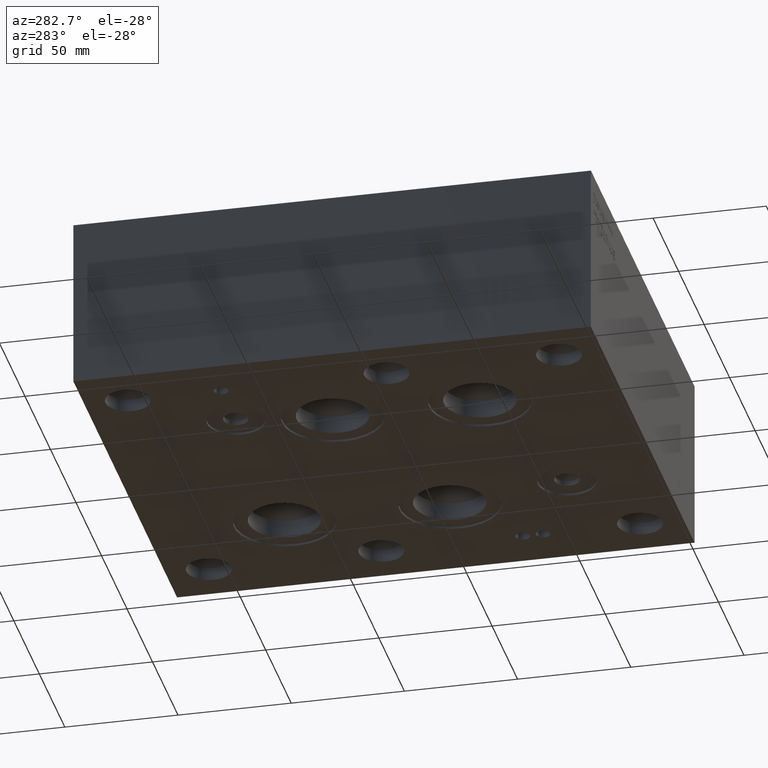
[diagram: clean part render]
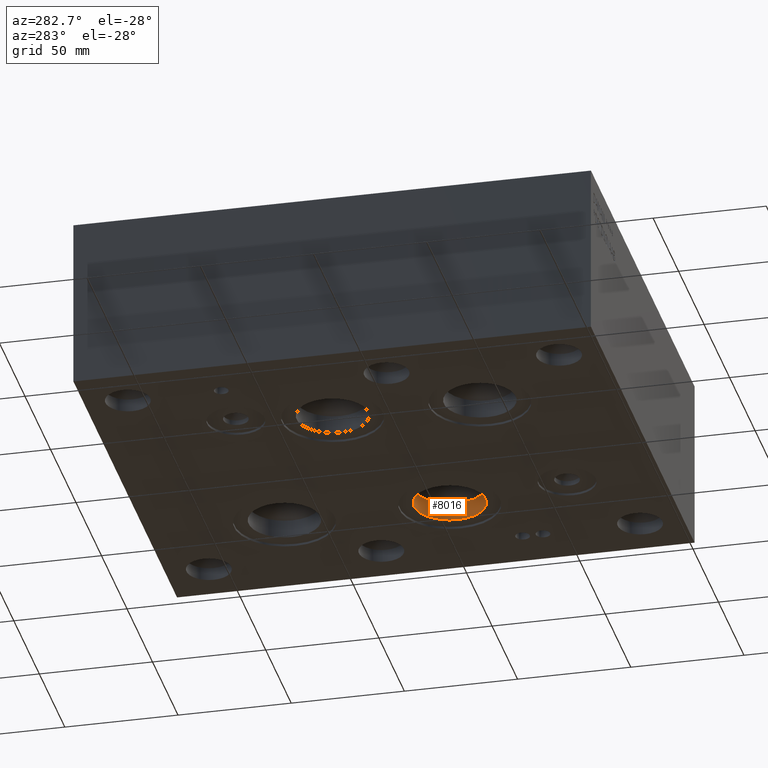
[diagram: same view with one face highlighted and labeled with its STEP entity id]
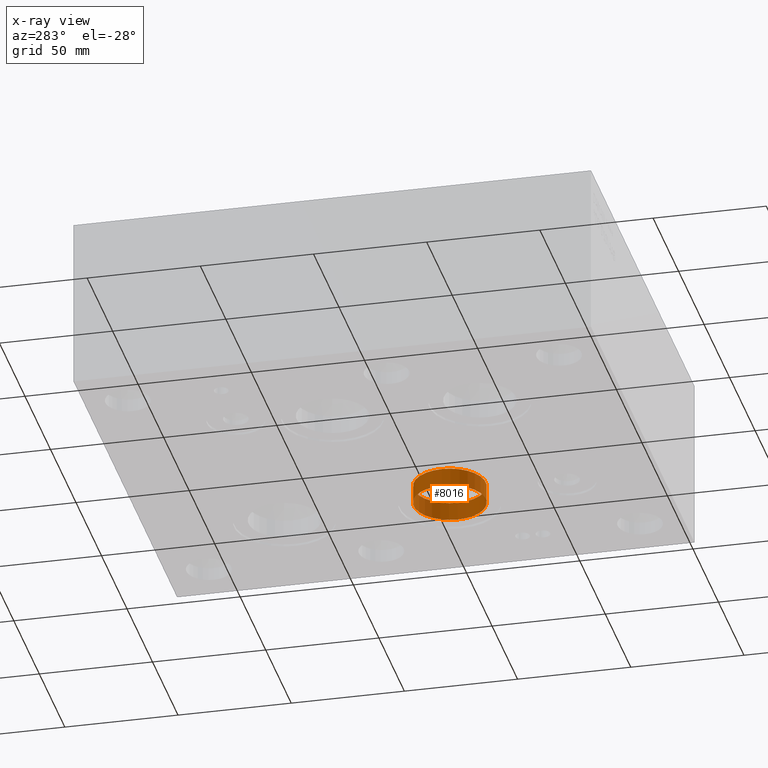
[diagram: x-ray of the same camera — body ghosted, the highlighted face saturated]
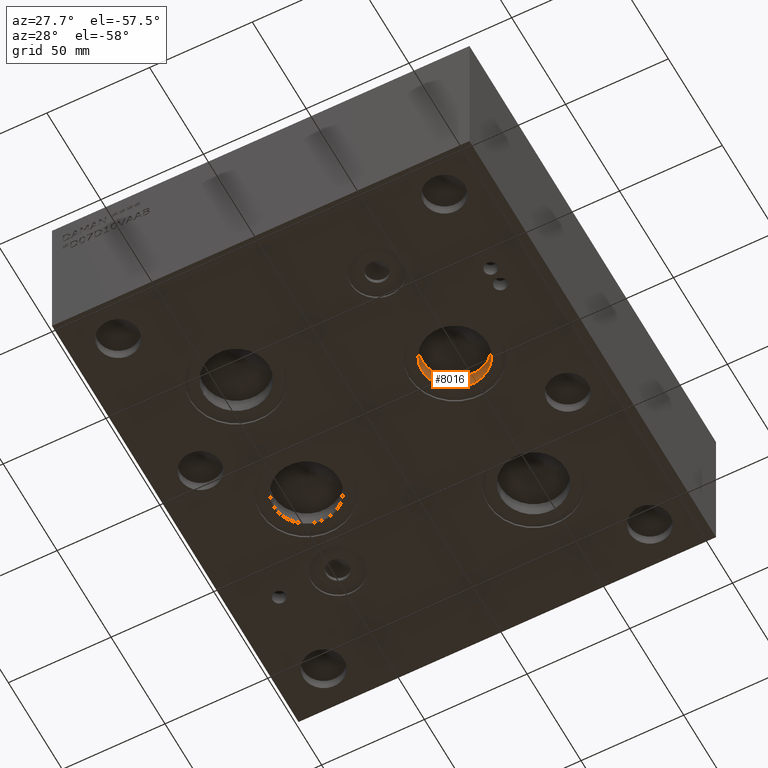
[diagram: same view with one face highlighted and labeled with its STEP entity id]
A machine part, auxiliary view. The second image highlights one B-rep face of the part: STEP entity #8016.
The next image is the same camera in x-ray: the body ghosted, the highlighted face saturated — about 0% of this face is hidden behind the body in this view.
A second angle (auxiliary view) of the same face is appended — the face is thin or edge-on in the first view.
In plain terms, the highlighted cylindrical surface (bore or boss wall) has radius 15.875 mm, axis along (0, 0, -1).
Its self-contained STEP definition (entity closure, byte-faithful):
#19=CYLINDRICAL_SURFACE('',#8399,15.875);
#84=CIRCLE('',#8397,15.875);
#85=CIRCLE('',#8398,15.875);
#86=CIRCLE('',#8400,15.875);
#880=FACE_OUTER_BOUND('',#1325,.T.);
#1325=EDGE_LOOP('',(#6613,#6614,#6615,#6616,#6617));
#2177=LINE('',#13101,#2964);
#2964=VECTOR('',#9917,15.875);
#3617=VERTEX_POINT('',#13092);
#3618=VERTEX_POINT('',#13093);
#3620=VERTEX_POINT('',#13099);
#4672=EDGE_CURVE('',#3617,#3618,#84,.T.);
#4674=EDGE_CURVE('',#3618,#3617,#85,.T.);
#4675=EDGE_CURVE('',#3620,#3620,#86,.T.);
#4676=EDGE_CURVE('',#3620,#3618,#2177,.T.);
#6613=ORIENTED_EDGE('',*,*,#4675,.F.);
#6614=ORIENTED_EDGE('',*,*,#4676,.T.);
#6615=ORIENTED_EDGE('',*,*,#4672,.F.);
#6616=ORIENTED_EDGE('',*,*,#4674,.F.);
#6617=ORIENTED_EDGE('',*,*,#4676,.F.);
#8016=ADVANCED_FACE('',(#880),#19,.F.);
#8397=AXIS2_PLACEMENT_3D('',#13094,#9908,#9909);
#8398=AXIS2_PLACEMENT_3D('',#13097,#9911,#9912);
#8399=AXIS2_PLACEMENT_3D('',#13098,#9913,#9914);
#8400=AXIS2_PLACEMENT_3D('',#13100,#9915,#9916);
#9908=DIRECTION('center_axis',(0.,0.,-1.));
#9909=DIRECTION('ref_axis',(1.,0.,0.));
#9911=DIRECTION('center_axis',(0.,0.,-1.));
#9912=DIRECTION('ref_axis',(1.,0.,0.));
#9913=DIRECTION('center_axis',(0.,0.,-1.));
#9914=DIRECTION('ref_axis',(1.,0.,0.));
#9915=DIRECTION('center_axis',(0.,0.,1.));
#9916=DIRECTION('ref_axis',(1.,0.,0.));
#9917=DIRECTION('',(0.,0.,1.));
#13092=CARTESIAN_POINT('',(161.925,95.25,9.16544));
#13093=CARTESIAN_POINT('',(130.175,95.25,9.16544));
#13094=CARTESIAN_POINT('Origin',(146.05,95.25,9.16544));
#13097=CARTESIAN_POINT('Origin',(146.05,95.25,9.16544));
#13098=CARTESIAN_POINT('Origin',(146.05,95.25,4.58272));
#13099=CARTESIAN_POINT('',(130.175,95.25,1.016));
#13100=CARTESIAN_POINT('Origin',(146.05,95.25,1.016));
#13101=CARTESIAN_POINT('',(130.175,95.25,4.58272));